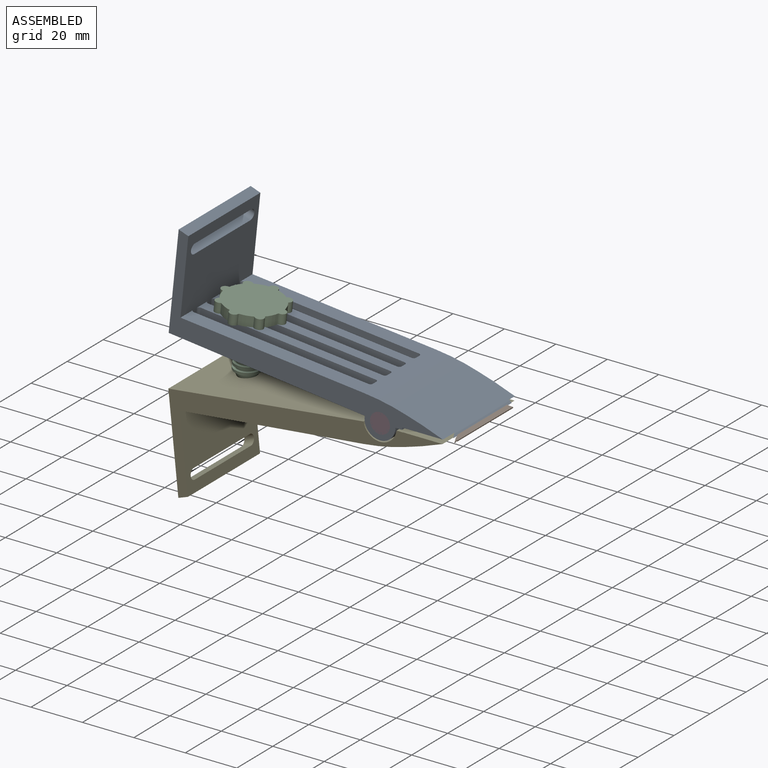
[diagram: assembled view]
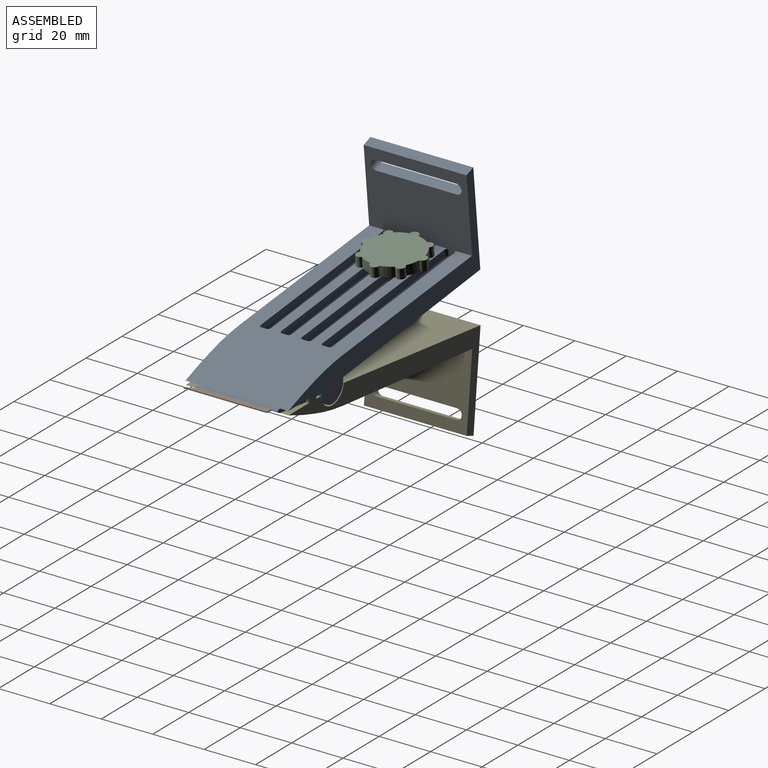
[diagram: assembled view, second angle]
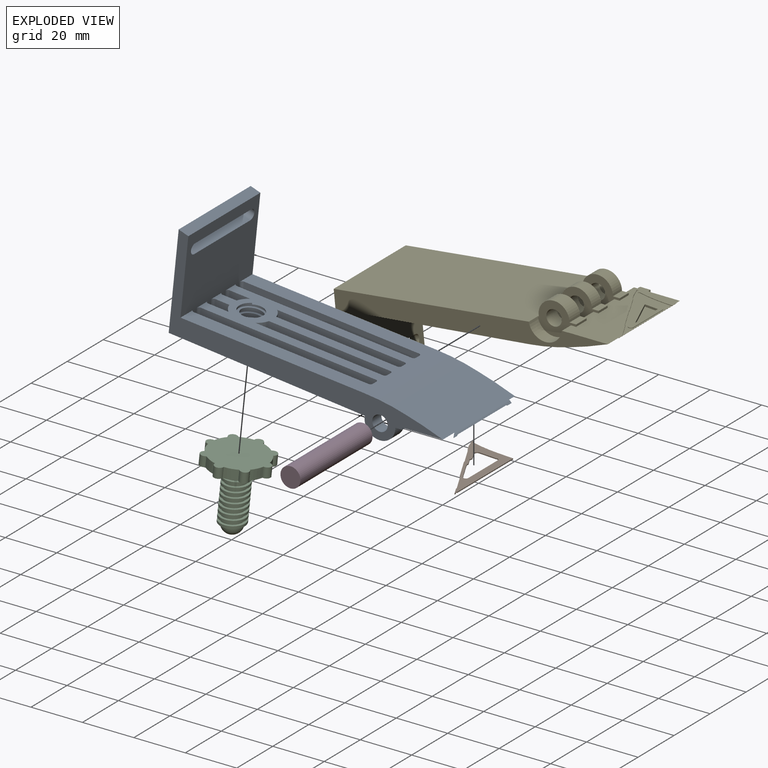
[diagram: exploded view]
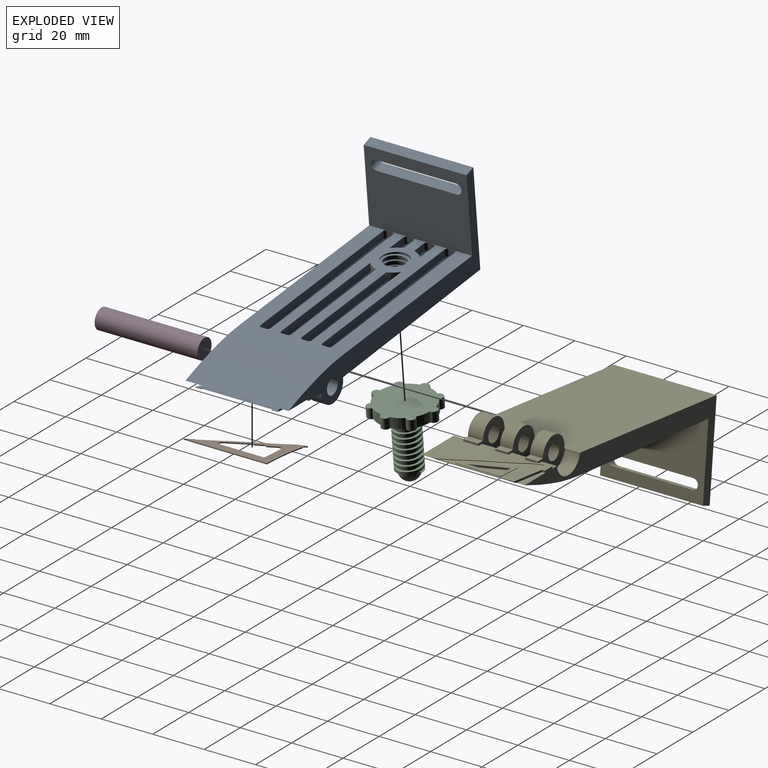
[diagram: exploded view, second angle]
ASSEMBLY  parts=5 mates=4
PART A: 163 faces, bbox 107.8x40x53.2 mm
  f0: cylinder r=4.25mm len=9.27mm, axis (-0.11,0,-0.99), area 77.1mm2, adj f2,f3,f22,f42
  f1: cylinder r=5.24mm len=11.24mm, axis (-0.11,0,-0.99), area 141.6mm2, adj f2,f3,f22,f42
  f2: bspline ~12.1x11.02mm, area 106.1mm2, adj f0,f1,f22,f42
  f3: bspline ~12.1x11.23mm, area 107.3mm2, adj f0,f1,f22,f42
  f4: cylinder r=8mm len=4mm, axis (-0.11,0,-0.99), area 16.7mm2, adj f8,f11,f13,f17,f42,f127
  f5: cylinder r=8mm len=4.04mm, axis (-0.11,0,-0.99), area 17.4mm2, adj f16,f36,f42,f86,f90,f133
  f6: cylinder r=8mm len=4.04mm, axis (-0.11,0,-0.99), area 17.4mm2, adj f9,f14,f42,f85,f89,f121
  f7: cylinder r=8mm len=4mm, axis (-0.11,0,-0.99), area 16.7mm2, adj f10,f12,f15,f40,f42,f115
  f8: plane 6.88x2mm, normal (0.11,0,0.99), area 12.5mm2, adj f4,f17,f127,f132
  f9: plane 48.47x5.58mm, normal (0.11,0,0.99), area 96.3mm2, adj f6,f14,f116,f121
  f10: plane 5.69x3.16mm, normal (0,-1,0), area 14mm2, adj f7,f42,f114,f115
  f11: plane 5.69x3.16mm, normal (0,1,0), area 14mm2, adj f4,f17,f42,f135
  f12: plane 8.13x3.44mm, normal (0,1,0), area 20.5mm2, adj f7,f15,f42,f123
  f13: plane 8.13x3.44mm, normal (0,-1,0), area 20.5mm2, adj f4,f42,f126,f127
  f14: cylinder r=1mm len=47.42mm, axis (0.99,0,-0.11), area 74.5mm2, adj f6,f9,f85,f113
  f15: cylinder r=1mm len=7.94mm, axis (-0.99,0,0.11), area 11.8mm2, adj f7,f12,f40,f122
  f16: cylinder r=1mm len=49.53mm, axis (0.99,0,-0.11), area 77.6mm2, adj f5,f36,f90,f125
  f17: cylinder r=1mm len=5.83mm, axis (-0.99,0,0.11), area 8.7mm2, adj f4,f8,f11,f134
  f18: plane 35.56x19.6mm, normal (0,0,-1), area 95mm2, adj f19,f21,f33,f43,f50,f51,f53,f54
  f19: cylinder r=6.01mm len=12.01mm, axis (0,1,0), area 100.2mm2, adj f18,f22,f33,f161
  f20: cylinder r=3mm len=6mm, axis (0,1,0), area 94.9mm2, adj f33,f161
  f21: plane 1.39x0.8mm, normal (1,0,0), area 1.1mm2, adj f18,f23,f54,f161
  f22: plane 76.23x40mm, normal (-0.11,0,-0.99), area 2987.6mm2, adj f0,f1,f2,f3,f19,f25,f29,f32
  f23: plane 36.36x15.86mm, normal (0,0,-1), area 331.7mm2, adj f21,f27,f31,f32,f45,f54,f55,f148
  f24: plane 5.02x2.6mm, normal (0,0,-1), area 13.1mm2, adj f25,f27,f151,f157
  f25: cylinder r=6.01mm len=12.01mm, axis (0,1,0), area 100mm2, adj f22,f24,f151,f157
  f26: cylinder r=3mm len=6mm, axis (0,1,0), area 94.7mm2, adj f151,f157
  f27: plane 5.02x0.8mm, normal (1,0,0), area 4mm2, adj f23,f24,f151,f157
  f28: plane 5.02x2.62mm, normal (0,0,-1), area 13.1mm2, adj f29,f31,f152,f162
  f29: cylinder r=6.01mm len=12.01mm, axis (0,1,0), area 100mm2, adj f22,f28,f152,f162
  f30: cylinder r=3mm len=6mm, axis (0,1,0), area 94.7mm2, adj f152,f162
  f31: plane 5.02x0.8mm, normal (1,0,0), area 4mm2, adj f23,f28,f152,f162
  f32: plane 106.6x53.19mm, normal (0,-1,0), area 867.8mm2, adj f22,f23,f42,f44,f45,f46,f47,f48
  f33: plane 106.6x53.19mm, normal (0,1,0), area 871.3mm2, adj f18,f19,f20,f22,f42,f45,f47,f48
  f34: plane 67.76x7.8mm, normal (0.11,0,0.99), area 136.4mm2, adj f139,f140,f144,f145
  f35: plane 3.3x2mm, normal (-0.99,0,0.11), area 6.6mm2, adj f42,f136,f140,f141
  f36: plane 48.47x5.58mm, normal (0.11,0,0.99), area 96.3mm2, adj f5,f16,f128,f133
  f37: plane 3.3x2mm, normal (-0.99,0,0.11), area 6.6mm2, adj f42,f124,f128,f129
  f38: plane 67.76x7.8mm, normal (0.11,0,0.99), area 136.4mm2, adj f103,f104,f108,f109
  f39: plane 3.3x2mm, normal (-0.99,0,0.11), area 6.6mm2, adj f42,f100,f104,f105
  f40: plane 6.88x2mm, normal (0.11,0,0.99), area 12.5mm2, adj f7,f15,f115,f120
  f41: plane 3.3x2mm, normal (-0.99,0,0.11), area 6.6mm2, adj f42,f112,f116,f117
  f42: plane 71.53x40.03mm, normal (0.1,0,0.99), area 1788.2mm2, adj f0,f1,f2,f3,f4,f5,f6,f7
  f43: plane 32.24x0.76mm, normal (0.65,0,0.76), area 23.3mm2, adj f18,f45,f50,f53,f54,f56,f57,f58
  f44: plane 5.03x2.59mm, normal (0,0,-1), area 13mm2, adj f32,f46,f55,f156
  f45: plane 40x8.38mm, normal (0.34,0,0.94), area 352.8mm2, adj f23,f32,f33,f43,f47,f50,f52,f54
  f46: cylinder r=6.01mm len=12.01mm, axis (0,1,0), area 100.2mm2, adj f22,f32,f44,f156
  f47: plane 40x6.34mm, normal (0.29,0,0.96), area 265.5mm2, adj f32,f33,f45,f48
  f48: cylinder r=85.45mm len=40mm, axis (0,1,0), area 661.8mm2, adj f32,f33,f42,f47
  f49: cylinder r=3mm len=6mm, axis (0,1,0), area 94.9mm2, adj f32,f156
  f50: plane 12.57x2.27mm, normal (0.18,0.98,0), area 9.8mm2, adj f18,f43,f45,f51,f52
  f51: plane 1.19x0.8mm, normal (1,0,0), area 1mm2, adj f18,f33,f50,f52
  f52: plane 11.42x3.25mm, normal (0,0,-1), area 25.4mm2, adj f33,f45,f50,f51
  f53: plane 0.17x0.15mm, normal (-0.45,-0.89,0), area 0mm2, adj f18,f43,f54
  f54: plane 31.83x16.81mm, normal (-0.88,-0.47,0), area 28.2mm2, adj f18,f21,f23,f43,f45,f53
  f55: plane 5.03x0.8mm, normal (1,0,0), area 4mm2, adj f23,f32,f44,f156
  f56: plane 3.83x0.31mm, normal (-0.08,-1,0), area 0.7mm2, adj f18,f43,f58,f59
  f57: plane 7.1x3.75mm, normal (0.88,0.47,0), area 1.6mm2, adj f18,f43,f58,f69
  f58: plane 30.73x15.75mm, normal (0,0,-1), area 108.8mm2, adj f43,f56,f57,f59,f60,f61,f62,f63
  f59: cylinder r=53.87mm len=10.45mm, axis (0,0,-1), area 2.1mm2, adj f18,f56,f58,f60
  f60: plane 0.55x0.29mm, normal (0.47,-0.88,0), area 0.1mm2, adj f18,f58,f59,f61
  f61: plane 1.33x0.7mm, normal (-0.88,-0.47,0), area 0.3mm2, adj f18,f58,f60,f62
  f62: plane 0.45x0.24mm, normal (0.47,-0.88,0), area 0.1mm2, adj f18,f58,f61,f63
  f63: plane 3.65x1.36mm, normal (0.94,0.35,0), area 0.8mm2, adj f18,f58,f62,f64
  f64: plane 2.1x1.11mm, normal (0.88,0.47,0), area 0.5mm2, adj f18,f58,f63,f65
  f65: plane 0.25x0.2mm, normal (0.47,0.88,0), area 0.1mm2, adj f18,f58,f64,f66
  f66: plane 8.05x4.25mm, normal (0.88,0.47,0), area 1.8mm2, adj f18,f58,f65,f67
  f67: plane 0.33x0.2mm, normal (1,0,0), area 0.1mm2, adj f18,f58,f66,f68
  f68: plane 9.49x5.01mm, normal (0.88,0.47,0), area 2.1mm2, adj f18,f58,f67,f69
  f69: plane 0.26x0.2mm, normal (0.25,0.97,0), area 0.1mm2, adj f18,f57,f58,f68
  f70: plane 3.4x1.77mm, normal (-0.89,-0.46,0), area 0.8mm2, adj f58,f71,f79,f84
  f71: cylinder r=1.06mm len=1.54mm, axis (0,0,-1), area 0.4mm2, adj f58,f70,f72,f84
  f72: plane 6.81x0.55mm, normal (0.08,1,0), area 1.4mm2, adj f58,f71,f73,f84
  f73: cylinder r=1.11mm len=1.42mm, axis (0,0,-1), area 0.4mm2, adj f58,f72,f74,f84
  f74: plane 16.2x0.2mm, normal (1,0,0), area 3.2mm2, adj f58,f73,f75,f84
  f75: cylinder r=0.98mm len=1.85mm, axis (0,0,-1), area 0.6mm2, adj f58,f74,f76,f84
  f76: plane 8.21x4.34mm, normal (-0.88,-0.47,0), area 1.9mm2, adj f58,f75,f77,f84
  f77: plane 1.27x0.2mm, normal (-1,-0.09,0), area 0.3mm2, adj f58,f76,f78,f84
  f78: plane 2.72x1.44mm, normal (-0.88,-0.47,0), area 0.6mm2, adj f58,f77,f79,f84
  f79: plane 1.08x0.26mm, normal (-0.97,0.24,0), area 0.2mm2, adj f58,f70,f78,f84
  f80: plane 13.15x5.48mm, normal (0,0,-1), area 34.4mm2, adj f81,f82,f83
  f81: plane 5.48x0.8mm, normal (-0.11,-0.99,0), area 4.4mm2, adj f80,f82,f83,f84
  f82: plane 12.57x0.8mm, normal (-1,0,0), area 10.1mm2, adj f80,f81,f83,f84
  f83: plane 13.15x5.48mm, normal (0.92,0.38,0), area 11.4mm2, adj f80,f81,f82,f84
  f84: plane 18.75x9.37mm, normal (0,0,-1), area 74.1mm2, adj f70,f71,f72,f73,f74,f75,f76,f77
  f85: plane 47.36x8.17mm, normal (0,-1,0), area 144mm2, adj f6,f14,f42,f112
  f86: plane 47.36x8.17mm, normal (0,1,0), area 144mm2, adj f5,f42,f129,f133
  f87: plane 68.13x10.34mm, normal (0,1,0), area 199.9mm2, adj f42,f105,f109,f111
  f88: plane 68.13x10.34mm, normal (0,-1,0), area 199.9mm2, adj f42,f100,f102,f103
  f89: plane 49.79x8.43mm, normal (0,1,0), area 150.8mm2, adj f6,f42,f117,f121
  f90: plane 49.79x8.43mm, normal (0,-1,0), area 150.8mm2, adj f5,f16,f42,f124
  f91: plane 68.13x10.34mm, normal (0,1,0), area 199.9mm2, adj f42,f141,f145,f147
  f92: plane 68.13x10.34mm, normal (0,-1,0), area 199.9mm2, adj f42,f136,f138,f139
  f93: plane 40x37.37mm, normal (-0.99,0,0.1), area 1365.4mm2, adj f22,f32,f33,f95,f96,f97,f98,f99
  f94: plane 40x31.98mm, normal (0.99,0,-0.1), area 1067mm2, adj f32,f33,f42,f95,f96,f97,f98,f99
  f95: plane 31.24x3.76mm, normal (-0.34,0,-0.94), area 124.9mm2, adj f93,f94,f96,f98
  f96: bspline ~5.35x4.17mm, area 24.8mm2, adj f93,f94,f95,f97
  f97: plane 31.16x3.76mm, normal (0.34,0,0.94), area 124.7mm2, adj f93,f94,f96,f98
  f98: bspline ~5.35x4.17mm, area 24.5mm2, adj f93,f94,f95,f97
  f99: plane 40x3.76mm, normal (0.34,0,0.94), area 160mm2, adj f32,f33,f93,f94
  f100: cylinder r=1mm len=3.41mm, axis (0.11,0,0.99), area 5.2mm2, adj f39,f42,f88,f101
  f101: sphere r=1mm, area 1.6mm2, adj f100,f103,f104
  f102: cylinder r=1mm len=2.64mm, axis (-0.1,0,-0.99), area 4mm2, adj f42,f88,f94,f106
  f103: cylinder r=1mm len=67.87mm, axis (0.99,0,-0.11), area 107.1mm2, adj f38,f88,f101,f106
  f104: cylinder r=1mm len=2mm, axis (0,1,0), area 3.1mm2, adj f38,f39,f101,f107
  f105: cylinder r=1mm len=3.41mm, axis (-0.11,0,-0.99), area 5.2mm2, adj f39,f42,f87,f107
  f106: sphere r=1mm, area 1.5mm2, adj f102,f103,f108
  f107: sphere r=1mm, area 1.6mm2, adj f104,f105,f109
  f108: cylinder r=1mm len=2mm, axis (0,-1,0), area 3.1mm2, adj f38,f94,f106,f110
  f109: cylinder r=1mm len=67.87mm, axis (-0.99,0,0.11), area 107.1mm2, adj f38,f87,f107,f110
  f110: sphere r=1mm, area 1.5mm2, adj f108,f109,f111
  f111: cylinder r=1mm len=2.64mm, axis (0.1,0,0.99), area 4mm2, adj f42,f87,f94,f110
  f112: cylinder r=1mm len=3.41mm, axis (0.11,0,0.99), area 5.2mm2, adj f41,f42,f85,f113
  f113: sphere r=1mm, area 1.6mm2, adj f14,f112,f116
  f114: cylinder r=1mm len=2.64mm, axis (-0.1,0,-0.99), area 4mm2, adj f10,f42,f94,f118
  f115: cylinder r=1mm len=5.83mm, axis (0.99,0,-0.11), area 8.7mm2, adj f7,f10,f40,f118
  f116: cylinder r=1mm len=2mm, axis (0,1,0), area 3.1mm2, adj f9,f41,f113,f119
  f117: cylinder r=1mm len=3.41mm, axis (-0.11,0,-0.99), area 5.2mm2, adj f41,f42,f89,f119
  f118: sphere r=1mm, area 1.5mm2, adj f114,f115,f120
  f119: sphere r=1mm, area 1.6mm2, adj f116,f117,f121
  f120: cylinder r=1mm len=2mm, axis (0,-1,0), area 3.1mm2, adj f40,f94,f118,f122
  f121: cylinder r=1mm len=49.53mm, axis (-0.99,0,0.11), area 77.6mm2, adj f6,f9,f89,f119
  f122: sphere r=1mm, area 1.5mm2, adj f15,f120,f123
  f123: cylinder r=1mm len=2.64mm, axis (0.1,0,0.99), area 4mm2, adj f12,f42,f94,f122
  f124: cylinder r=1mm len=3.41mm, axis (0.11,0,0.99), area 5.2mm2, adj f37,f42,f90,f125
  f125: sphere r=1mm, area 1.6mm2, adj f16,f124,f128
  f126: cylinder r=1mm len=2.64mm, axis (-0.1,0,-0.99), area 4mm2, adj f13,f42,f94,f130
  f127: cylinder r=1mm len=7.94mm, axis (0.99,0,-0.11), area 11.8mm2, adj f4,f8,f13,f130
  f128: cylinder r=1mm len=2mm, axis (0,1,0), area 3.1mm2, adj f36,f37,f125,f131
  f129: cylinder r=1mm len=3.41mm, axis (-0.11,0,-0.99), area 5.2mm2, adj f37,f42,f86,f131
  f130: sphere r=1mm, area 1.5mm2, adj f126,f127,f132
  f131: sphere r=1mm, area 1.6mm2, adj f128,f129,f133
  f132: cylinder r=1mm len=2mm, axis (0,-1,0), area 3.1mm2, adj f8,f94,f130,f134
  f133: cylinder r=1mm len=47.42mm, axis (-0.99,0,0.11), area 74.5mm2, adj f5,f36,f86,f131
  f134: sphere r=1mm, area 1.5mm2, adj f17,f132,f135
  f135: cylinder r=1mm len=2.64mm, axis (0.1,0,0.99), area 4mm2, adj f11,f42,f94,f134
  f136: cylinder r=1mm len=3.41mm, axis (0.11,0,0.99), area 5.2mm2, adj f35,f42,f92,f137
  f137: sphere r=1mm, area 1.6mm2, adj f136,f139,f140
  f138: cylinder r=1mm len=2.64mm, axis (-0.1,0,-0.99), area 4mm2, adj f42,f92,f94,f142
  f139: cylinder r=1mm len=67.87mm, axis (0.99,0,-0.11), area 107.1mm2, adj f34,f92,f137,f142
  f140: cylinder r=1mm len=2mm, axis (0,1,0), area 3.1mm2, adj f34,f35,f137,f143
  f141: cylinder r=1mm len=3.41mm, axis (-0.11,0,-0.99), area 5.2mm2, adj f35,f42,f91,f143
  f142: sphere r=1mm, area 1.5mm2, adj f138,f139,f144
  f143: sphere r=1mm, area 1.6mm2, adj f140,f141,f145
  f144: cylinder r=1mm len=2mm, axis (0,-1,0), area 3.1mm2, adj f34,f94,f142,f146
  f145: cylinder r=1mm len=67.87mm, axis (-0.99,0,0.11), area 107.1mm2, adj f34,f91,f143,f146
  f146: sphere r=1mm, area 1.5mm2, adj f144,f145,f147
  f147: cylinder r=1mm len=2.64mm, axis (0.1,0,0.99), area 4mm2, adj f42,f91,f94,f146
  f148: plane 6.63x0.05mm, normal (-1,0,0), area 0.3mm2, adj f23,f150,f151,f152
  f149: cylinder r=6.5mm len=12.85mm, axis (0,1,0), area 122.5mm2, adj f22,f150,f151,f152
  f150: plane 6.63x2.4mm, normal (0,0,-1), area 15.9mm2, adj f148,f149,f151,f152
  f151: plane 15.26x12.51mm, normal (0,1,0), area 96.1mm2, adj f22,f23,f24,f25,f26,f27,f148,f149
  f152: plane 15.26x12.51mm, normal (0,-1,0), area 96.1mm2, adj f22,f23,f28,f29,f30,f31,f148,f149
  f153: plane 6.63x0.05mm, normal (-1,0,0), area 0.3mm2, adj f23,f155,f156,f157
  f154: cylinder r=6.5mm len=12.85mm, axis (0,1,0), area 122.5mm2, adj f22,f155,f156,f157
  f155: plane 6.63x2.4mm, normal (0,0,-1), area 15.9mm2, adj f153,f154,f156,f157
  f156: plane 15.26x12.51mm, normal (0,1,0), area 96.1mm2, adj f22,f23,f44,f46,f49,f55,f153,f154
  f157: plane 15.26x12.51mm, normal (0,-1,0), area 96.1mm2, adj f22,f23,f24,f25,f26,f27,f153,f154
  f158: plane 6.63x0.05mm, normal (-1,0,0), area 0.3mm2, adj f23,f160,f161,f162
  f159: cylinder r=6.5mm len=12.85mm, axis (0,-1,0), area 122.5mm2, adj f22,f160,f161,f162
  f160: plane 6.63x2.4mm, normal (0,0,-1), area 15.9mm2, adj f158,f159,f161,f162
  f161: plane 15.26x12.51mm, normal (0,-1,0), area 96.1mm2, adj f18,f19,f20,f21,f22,f23,f158,f159
  f162: plane 15.26x12.51mm, normal (0,1,0), area 96.1mm2, adj f22,f23,f28,f29,f30,f31,f158,f159
PART B: 31 faces, bbox 18.3x35.8x0.4 mm
  f0: plane 0.67x0.38mm, normal (0.88,0.47,0), area 0.3mm2, adj f1,f28,f29,f30
  f1: plane 0.38x0.36mm, normal (0.47,-0.88,0), area 0.2mm2, adj f0,f2,f29,f30
  f2: plane 30.83x0.38mm, normal (1,0,0), area 11.7mm2, adj f1,f3,f29,f30
  f3: plane 6.14x0.49mm, normal (0.08,1,0), area 2.3mm2, adj f2,f4,f29,f30
  f4: cylinder r=53.87mm len=10.45mm, axis (0,0,-1), area 4mm2, adj f3,f5,f29,f30
  f5: plane 0.55x0.38mm, normal (-0.47,0.88,0), area 0.2mm2, adj f4,f6,f29,f30
  f6: plane 1.33x0.7mm, normal (0.88,0.47,0), area 0.6mm2, adj f5,f7,f29,f30
  f7: plane 0.45x0.38mm, normal (-0.47,0.88,0), area 0.2mm2, adj f6,f8,f29,f30
  f8: plane 3.65x1.36mm, normal (-0.94,-0.35,0), area 1.5mm2, adj f7,f9,f29,f30
  f9: plane 2.1x1.11mm, normal (-0.88,-0.47,0), area 0.9mm2, adj f8,f10,f29,f30
  f10: plane 0.38x0.25mm, normal (-0.47,-0.88,0), area 0.1mm2, adj f9,f11,f29,f30
  f11: plane 8.05x4.25mm, normal (-0.88,-0.47,0), area 3.5mm2, adj f10,f12,f29,f30
  f12: plane 0.38x0.33mm, normal (-1,0,0), area 0.1mm2, adj f11,f13,f29,f30
  f13: plane 9.49x5.01mm, normal (-0.88,-0.47,0), area 4.1mm2, adj f12,f14,f29,f30
  f14: plane 0.38x0.26mm, normal (-0.25,-0.97,0), area 0.1mm2, adj f13,f15,f29,f30
  f15: plane 8.15x4.3mm, normal (-0.88,-0.47,0), area 3.5mm2, adj f14,f16,f29,f30
  f16: plane 0.38x0.27mm, normal (-0.96,0.29,0), area 0.1mm2, adj f15,f17,f29,f30
  f17: plane 3.36x1.77mm, normal (-0.88,-0.47,0), area 1.4mm2, adj f16,f28,f29,f30
  f18: plane 3.4x1.77mm, normal (0.89,0.46,0), area 1.5mm2, adj f19,f27,f29,f30
  f19: cylinder r=1.06mm len=1.54mm, axis (0,0,-1), area 0.9mm2, adj f18,f20,f29,f30
  f20: plane 6.81x0.55mm, normal (-0.08,-1,0), area 2.6mm2, adj f19,f21,f29,f30
  f21: cylinder r=1.11mm len=1.42mm, axis (0,0,-1), area 0.7mm2, adj f20,f22,f29,f30
  f22: plane 16.2x0.38mm, normal (-1,0,0), area 6.2mm2, adj f21,f23,f29,f30
  f23: cylinder r=0.98mm len=1.85mm, axis (0,0,-1), area 1.1mm2, adj f22,f24,f29,f30
  f24: plane 8.21x4.34mm, normal (0.88,0.47,0), area 3.5mm2, adj f23,f25,f29,f30
  f25: plane 1.27x0.38mm, normal (1,0.09,0), area 0.5mm2, adj f24,f26,f29,f30
  f26: plane 2.72x1.44mm, normal (0.88,0.47,0), area 1.2mm2, adj f25,f27,f29,f30
  f27: plane 1.08x0.38mm, normal (0.97,-0.24,0), area 0.4mm2, adj f18,f26,f29,f30
  f28: plane 0.74x0.38mm, normal (1,0,0), area 0.3mm2, adj f0,f17,f29,f30
  f29: plane 35.85x18.3mm, normal (0,0,1), area 184.2mm2, adj f0,f1,f2,f3,f4,f5,f6,f7
  f30: plane 35.85x18.3mm, normal (0,0,-1), area 184.2mm2, adj f0,f1,f2,f3,f4,f5,f6,f7
PART C: 24 faces, bbox 25.5x25.5x29 mm
  f0: plane 10x5mm, normal (0,0,1), area 14.1mm2, adj f19,f21,f22,f23
  f1: cylinder r=11mm len=4.74mm, axis (0,0,-1), area 20.7mm2, adj f10,f11,f16,f17
  f2: cylinder r=11mm len=4.74mm, axis (0,0,-1), area 20.7mm2, adj f10,f11,f17,f18
  f3: cylinder r=11mm len=4.74mm, axis (0,0,-1), area 20.7mm2, adj f10,f11,f12,f18
  f4: cylinder r=11mm len=4.74mm, axis (0,0,-1), area 20.7mm2, adj f10,f11,f12,f13
  f5: cylinder r=11mm len=4.74mm, axis (0,0,-1), area 20.7mm2, adj f10,f11,f13,f14
  f6: cylinder r=11mm len=4.74mm, axis (0,0,-1), area 20.7mm2, adj f10,f11,f14,f15
  f7: cylinder r=11mm len=4.74mm, axis (0,0,-1), area 20.7mm2, adj f8,f10,f11,f15
  f8: cylinder r=1.73mm len=4mm, axis (0,0,-1), area 22.8mm2, adj f7,f9,f10,f11
  f9: cylinder r=11mm len=4.74mm, axis (0,0,-1), area 20.7mm2, adj f8,f10,f11,f16
  f10: plane 25.46x25.46mm, normal (0,0,1), area 354.6mm2, adj f1,f2,f3,f4,f5,f6,f7,f8
  f11: plane 25.46x25.46mm, normal (0,0,-1), area 419mm2, adj f1,f2,f3,f4,f5,f6,f7,f8
  f12: cylinder r=1.73mm len=4mm, axis (0,0,-1), area 22.8mm2, adj f3,f4,f10,f11
  f13: cylinder r=1.73mm len=4mm, axis (0,0,-1), area 22.8mm2, adj f4,f5,f10,f11
  f14: cylinder r=1.73mm len=4mm, axis (0,0,-1), area 22.8mm2, adj f5,f6,f10,f11
  f15: cylinder r=1.73mm len=4mm, axis (0,0,-1), area 22.8mm2, adj f6,f7,f10,f11
  f16: cylinder r=1.73mm len=4mm, axis (0,0,-1), area 22.8mm2, adj f1,f9,f10,f11
  f17: cylinder r=1.73mm len=4mm, axis (0,0,-1), area 22.8mm2, adj f1,f2,f10,f11
  f18: cylinder r=1.73mm len=4mm, axis (0,0,-1), area 22.8mm2, adj f2,f3,f10,f11
  f19: cylinder r=5mm len=21mm, axis (0,0,-1), area 332.4mm2, adj f0,f10,f21,f22
  f20: cylinder r=4mm len=21mm, axis (0,0,1), area 266mm2, adj f10,f21,f22,f23
  f21: bspline ~21.33x11.55mm, area 298.1mm2, adj f0,f10,f19,f20
  f22: bspline ~21.33x11.55mm, area 298.1mm2, adj f0,f10,f19,f20
  f23: sphere r=4mm, area 100.5mm2, adj f0,f20
PART D: 3 faces, bbox 7.8x40x7.8 mm
  f0: cylinder r=3.9mm len=40mm, axis (0,-1,0), area 980.2mm2, adj f1,f2
  f1: plane 7.8x7.8mm, normal (0,1,0), area 47.8mm2, adj f0
  f2: plane 7.8x7.8mm, normal (0,-1,0), area 47.8mm2, adj f0
PART E: 145 faces, bbox 107.8x40x53.2 mm
  f0: plane 76.23x40mm, normal (-0.11,0,0.99), area 3060.5mm2, adj f2,f4,f9,f13,f16,f72,f128,f130
  f1: plane 35.56x16.63mm, normal (0,0,1), area 80.5mm2, adj f2,f26,f30,f31,f33,f34,f35,f36
  f2: plane 106.6x47.18mm, normal (0,1,0), area 774.9mm2, adj f0,f1,f25,f27,f28,f29,f31,f32
  f3: plane 5.02x2.61mm, normal (0,0,1), area 13.1mm2, adj f4,f7,f130,f139
  f4: cylinder r=6.01mm len=12.01mm, axis (0,1,0), area 100mm2, adj f0,f3,f130,f139
  f5: cylinder r=3mm len=6mm, axis (0,1,0), area 94.7mm2, adj f130,f139
  f6: plane 35.71x15.85mm, normal (0,0,1), area 331.5mm2, adj f7,f11,f15,f16,f27,f34,f127,f130
  f7: plane 5.02x0.8mm, normal (1,0,0), area 4mm2, adj f3,f6,f130,f139
  f8: plane 5.83x2.6mm, normal (0,0,1), area 15.1mm2, adj f9,f11,f131,f135
  f9: cylinder r=6.01mm len=12.01mm, axis (0,1,0), area 116.1mm2, adj f0,f8,f131,f135
  f10: cylinder r=3mm len=6mm, axis (0,1,0), area 109.9mm2, adj f131,f135
  f11: plane 5.83x0.8mm, normal (1,0,0), area 4.7mm2, adj f6,f8,f131,f135
  f12: plane 5.03x2.62mm, normal (0,0,1), area 13.2mm2, adj f13,f15,f140,f144
  f13: cylinder r=6.01mm len=12.01mm, axis (0,1,0), area 100.1mm2, adj f0,f12,f140,f144
  f14: cylinder r=3mm len=6mm, axis (0,1,0), area 94.8mm2, adj f140,f144
  f15: plane 5.03x0.8mm, normal (1,0,0), area 4mm2, adj f6,f12,f140,f144
  f16: plane 106.6x46.38mm, normal (0,-1,0), area 771.7mm2, adj f0,f6,f25,f27,f28,f29,f72,f73
  f17: plane 67.76x7.8mm, normal (0.11,0,-0.99), area 136.4mm2, adj f118,f119,f123,f124
  f18: plane 3.3x2mm, normal (-0.99,0,-0.11), area 6.6mm2, adj f25,f115,f119,f120
  f19: plane 67.76x7.8mm, normal (0.11,0,-0.99), area 136.4mm2, adj f106,f107,f111,f112
  f20: plane 3.3x2mm, normal (-0.99,0,-0.11), area 6.6mm2, adj f25,f103,f107,f108
  f21: plane 67.76x7.8mm, normal (0.11,0,-0.99), area 136.4mm2, adj f82,f83,f87,f88
  f22: plane 3.3x2mm, normal (-0.99,0,-0.11), area 6.6mm2, adj f25,f79,f83,f84
  f23: plane 67.76x7.8mm, normal (0.11,0,-0.99), area 136.4mm2, adj f94,f95,f99,f100
  f24: plane 3.3x2mm, normal (-0.99,0,-0.11), area 6.6mm2, adj f25,f91,f95,f96
  f25: plane 71.51x40mm, normal (0.1,0,-0.99), area 1755.1mm2, adj f2,f16,f18,f20,f22,f24,f29,f64
  f26: plane 32.24x0.76mm, normal (0.65,0,-0.76), area 23.3mm2, adj f1,f27,f30,f33,f34,f35,f36,f37
  f27: plane 40x8.38mm, normal (0.34,0,-0.94), area 352.8mm2, adj f2,f6,f16,f26,f28,f30,f32,f34
  f28: plane 40x6.34mm, normal (0.29,0,-0.96), area 265.5mm2, adj f2,f16,f27,f29
  f29: cylinder r=85.45mm len=40mm, axis (0,1,0), area 661.8mm2, adj f2,f16,f25,f28
  f30: plane 12.57x2.27mm, normal (0.18,0.98,0), area 9.8mm2, adj f1,f26,f27,f31,f32
  f31: plane 1.19x0.8mm, normal (1,0,0), area 1mm2, adj f1,f2,f30,f32
  f32: plane 11.42x3.25mm, normal (0,0,1), area 25.4mm2, adj f2,f27,f30,f31
  f33: plane 0.17x0.15mm, normal (-0.45,-0.89,0), area 0mm2, adj f1,f26,f34
  f34: plane 31.19x16.46mm, normal (-0.88,-0.47,0), area 27.7mm2, adj f1,f6,f26,f27,f33,f142
  f35: plane 3.83x0.31mm, normal (-0.08,-1,0), area 0.7mm2, adj f1,f26,f37,f38
  f36: plane 7.1x3.75mm, normal (0.88,0.47,0), area 1.6mm2, adj f1,f26,f37,f48
  f37: plane 30.73x15.75mm, normal (0,0,1), area 108.8mm2, adj f26,f35,f36,f38,f39,f40,f41,f42
  f38: cylinder r=53.87mm len=10.45mm, axis (0,0,1), area 2.1mm2, adj f1,f35,f37,f39
  f39: plane 0.55x0.29mm, normal (0.47,-0.88,0), area 0.1mm2, adj f1,f37,f38,f40
  f40: plane 1.33x0.7mm, normal (-0.88,-0.47,0), area 0.3mm2, adj f1,f37,f39,f41
  f41: plane 0.45x0.24mm, normal (0.47,-0.88,0), area 0.1mm2, adj f1,f37,f40,f42
  f42: plane 3.65x1.36mm, normal (0.94,0.35,0), area 0.8mm2, adj f1,f37,f41,f43
  f43: plane 2.1x1.11mm, normal (0.88,0.47,0), area 0.5mm2, adj f1,f37,f42,f44
  f44: plane 0.25x0.2mm, normal (0.47,0.88,0), area 0.1mm2, adj f1,f37,f43,f45
  f45: plane 8.05x4.25mm, normal (0.88,0.47,0), area 1.8mm2, adj f1,f37,f44,f46
  f46: plane 0.33x0.2mm, normal (1,0,0), area 0.1mm2, adj f1,f37,f45,f47
  f47: plane 9.49x5.01mm, normal (0.88,0.47,0), area 2.1mm2, adj f1,f37,f46,f48
  f48: plane 0.26x0.2mm, normal (0.25,0.97,0), area 0.1mm2, adj f1,f36,f37,f47
  f49: plane 3.4x1.77mm, normal (-0.89,-0.46,0), area 0.8mm2, adj f37,f50,f58,f63
  f50: cylinder r=1.06mm len=1.54mm, axis (0,0,1), area 0.4mm2, adj f37,f49,f51,f63
  f51: plane 6.81x0.55mm, normal (0.08,1,0), area 1.4mm2, adj f37,f50,f52,f63
  f52: cylinder r=1.11mm len=1.42mm, axis (0,0,1), area 0.4mm2, adj f37,f51,f53,f63
  f53: plane 16.2x0.2mm, normal (1,0,0), area 3.2mm2, adj f37,f52,f54,f63
  f54: cylinder r=0.98mm len=1.85mm, axis (0,0,1), area 0.6mm2, adj f37,f53,f55,f63
  f55: plane 8.21x4.34mm, normal (-0.88,-0.47,0), area 1.9mm2, adj f37,f54,f56,f63
  f56: plane 1.27x0.2mm, normal (-1,-0.09,0), area 0.3mm2, adj f37,f55,f57,f63
  f57: plane 2.72x1.44mm, normal (-0.88,-0.47,0), area 0.6mm2, adj f37,f56,f58,f63
  f58: plane 1.08x0.26mm, normal (-0.97,0.24,0), area 0.2mm2, adj f37,f49,f57,f63
  f59: plane 13.15x5.48mm, normal (0,0,1), area 34.4mm2, adj f60,f61,f62
  f60: plane 5.48x0.8mm, normal (-0.11,-0.99,0), area 4.4mm2, adj f59,f61,f62,f63
  f61: plane 12.57x0.8mm, normal (-1,0,0), area 10.1mm2, adj f59,f60,f62,f63
  f62: plane 13.15x5.48mm, normal (0.92,0.38,0), area 11.4mm2, adj f59,f60,f61,f63
  f63: plane 18.75x9.37mm, normal (0,0,1), area 74.1mm2, adj f49,f50,f51,f52,f53,f54,f55,f56
  f64: plane 68.13x10.34mm, normal (0,-1,0), area 199.9mm2, adj f25,f91,f93,f94
  f65: plane 68.13x10.34mm, normal (0,1,0), area 199.9mm2, adj f25,f108,f112,f114
  f66: plane 68.13x10.34mm, normal (0,1,0), area 199.9mm2, adj f25,f84,f88,f90
  f67: plane 68.13x10.34mm, normal (0,-1,0), area 199.9mm2, adj f25,f79,f81,f82
  f68: plane 68.13x10.34mm, normal (0,1,0), area 199.9mm2, adj f25,f96,f100,f102
  f69: plane 68.13x10.34mm, normal (0,-1,0), area 199.9mm2, adj f25,f103,f105,f106
  f70: plane 68.13x10.34mm, normal (0,1,0), area 199.9mm2, adj f25,f120,f124,f126
  f71: plane 68.13x10.34mm, normal (0,-1,0), area 199.9mm2, adj f25,f115,f117,f118
  f72: plane 40x37.37mm, normal (-0.99,0,-0.1), area 1365.4mm2, adj f0,f2,f16,f74,f75,f76,f77,f78
  f73: plane 40x31.98mm, normal (0.99,0,0.1), area 1067mm2, adj f2,f16,f25,f74,f75,f76,f77,f78
  f74: plane 31.24x3.76mm, normal (-0.34,0,0.94), area 124.9mm2, adj f72,f73,f75,f77
  f75: bspline ~5.35x4.17mm, area 24.8mm2, adj f72,f73,f74,f76
  f76: plane 31.16x3.76mm, normal (0.34,0,-0.94), area 124.7mm2, adj f72,f73,f75,f77
  f77: bspline ~5.35x4.17mm, area 24.5mm2, adj f72,f73,f74,f76
  f78: plane 40x3.76mm, normal (0.34,0,-0.94), area 160mm2, adj f2,f16,f72,f73
  f79: cylinder r=1mm len=3.41mm, axis (0.11,0,-0.99), area 5.2mm2, adj f22,f25,f67,f80
  f80: sphere r=1mm, area 1.6mm2, adj f79,f82,f83
  f81: cylinder r=1mm len=2.64mm, axis (-0.1,0,0.99), area 4mm2, adj f25,f67,f73,f85
  f82: cylinder r=1mm len=67.87mm, axis (0.99,0,0.11), area 107.1mm2, adj f21,f67,f80,f85
  f83: cylinder r=1mm len=2mm, axis (0,1,0), area 3.1mm2, adj f21,f22,f80,f86
  f84: cylinder r=1mm len=3.41mm, axis (-0.11,0,0.99), area 5.2mm2, adj f22,f25,f66,f86
  f85: sphere r=1mm, area 1.6mm2, adj f81,f82,f87
  f86: sphere r=1mm, area 1.6mm2, adj f83,f84,f88
  f87: cylinder r=1mm len=2mm, axis (0,-1,0), area 3.1mm2, adj f21,f73,f85,f89
  f88: cylinder r=1mm len=67.87mm, axis (-0.99,0,-0.11), area 107.1mm2, adj f21,f66,f86,f89
  f89: sphere r=1mm, area 1.6mm2, adj f87,f88,f90
  f90: cylinder r=1mm len=2.64mm, axis (0.1,0,-0.99), area 4mm2, adj f25,f66,f73,f89
  f91: cylinder r=1mm len=3.41mm, axis (0.11,0,-0.99), area 5.2mm2, adj f24,f25,f64,f92
  f92: sphere r=1mm, area 1.6mm2, adj f91,f94,f95
  f93: cylinder r=1mm len=2.64mm, axis (-0.1,0,0.99), area 4mm2, adj f25,f64,f73,f97
  f94: cylinder r=1mm len=67.87mm, axis (0.99,0,0.11), area 107.1mm2, adj f23,f64,f92,f97
  f95: cylinder r=1mm len=2mm, axis (0,1,0), area 3.1mm2, adj f23,f24,f92,f98
  f96: cylinder r=1mm len=3.41mm, axis (-0.11,0,0.99), area 5.2mm2, adj f24,f25,f68,f98
  f97: sphere r=1mm, area 1.6mm2, adj f93,f94,f99
  f98: sphere r=1mm, area 1.6mm2, adj f95,f96,f100
  f99: cylinder r=1mm len=2mm, axis (0,-1,0), area 3.1mm2, adj f23,f73,f97,f101
  f100: cylinder r=1mm len=67.87mm, axis (-0.99,0,-0.11), area 107.1mm2, adj f23,f68,f98,f101
  f101: sphere r=1mm, area 1.6mm2, adj f99,f100,f102
  f102: cylinder r=1mm len=2.64mm, axis (0.1,0,-0.99), area 4mm2, adj f25,f68,f73,f101
  f103: cylinder r=1mm len=3.41mm, axis (0.11,0,-0.99), area 5.2mm2, adj f20,f25,f69,f104
  f104: sphere r=1mm, area 1.6mm2, adj f103,f106,f107
  f105: cylinder r=1mm len=2.64mm, axis (-0.1,0,0.99), area 4mm2, adj f25,f69,f73,f109
  f106: cylinder r=1mm len=67.87mm, axis (0.99,0,0.11), area 107.1mm2, adj f19,f69,f104,f109
  f107: cylinder r=1mm len=2mm, axis (0,1,0), area 3.1mm2, adj f19,f20,f104,f110
  f108: cylinder r=1mm len=3.41mm, axis (-0.11,0,0.99), area 5.2mm2, adj f20,f25,f65,f110
  f109: sphere r=1mm, area 1.6mm2, adj f105,f106,f111
  f110: sphere r=1mm, area 1.6mm2, adj f107,f108,f112
  f111: cylinder r=1mm len=2mm, axis (0,-1,0), area 3.1mm2, adj f19,f73,f109,f113
  f112: cylinder r=1mm len=67.87mm, axis (-0.99,0,-0.11), area 107.1mm2, adj f19,f65,f110,f113
  f113: sphere r=1mm, area 1.6mm2, adj f111,f112,f114
  f114: cylinder r=1mm len=2.64mm, axis (0.1,0,-0.99), area 4mm2, adj f25,f65,f73,f113
  f115: cylinder r=1mm len=3.41mm, axis (0.11,0,-0.99), area 5.2mm2, adj f18,f25,f71,f116
  f116: sphere r=1mm, area 1.6mm2, adj f115,f118,f119
  f117: cylinder r=1mm len=2.64mm, axis (-0.1,0,0.99), area 4mm2, adj f25,f71,f73,f121
  f118: cylinder r=1mm len=67.87mm, axis (0.99,0,0.11), area 107.1mm2, adj f17,f71,f116,f121
  f119: cylinder r=1mm len=2mm, axis (0,1,0), area 3.1mm2, adj f17,f18,f116,f122
  f120: cylinder r=1mm len=3.41mm, axis (-0.11,0,0.99), area 5.2mm2, adj f18,f25,f70,f122
  f121: sphere r=1mm, area 1.6mm2, adj f117,f118,f123
  f122: sphere r=1mm, area 1.6mm2, adj f119,f120,f124
  f123: cylinder r=1mm len=2mm, axis (0,-1,0), area 3.1mm2, adj f17,f73,f121,f125
  f124: cylinder r=1mm len=67.87mm, axis (-0.99,0,-0.11), area 107.1mm2, adj f17,f70,f122,f125
  f125: sphere r=1mm, area 1.6mm2, adj f123,f124,f126
  f126: cylinder r=1mm len=2.64mm, axis (0.1,0,-0.99), area 4mm2, adj f25,f70,f73,f125
  f127: plane 6.63x0.05mm, normal (-1,0,0), area 0.3mm2, adj f6,f129,f130,f131
  f128: cylinder r=6.5mm len=12.85mm, axis (0,-1,0), area 122.5mm2, adj f0,f129,f130,f131
  f129: plane 6.63x2.4mm, normal (0,0,1), area 15.9mm2, adj f127,f128,f130,f131
  f130: plane 15.26x12.51mm, normal (0,-1,0), area 96.1mm2, adj f0,f3,f4,f5,f6,f7,f127,f128
  f131: plane 15.26x12.51mm, normal (0,1,0), area 96.1mm2, adj f0,f6,f8,f9,f10,f11,f127,f128
  f132: plane 5.03x0.05mm, normal (-1,0,0), area 0.2mm2, adj f6,f16,f134,f135
  f133: cylinder r=6.5mm len=12.85mm, axis (0,-1,0), area 93mm2, adj f0,f16,f134,f135
  f134: plane 5.03x2.4mm, normal (0,0,1), area 12.1mm2, adj f16,f132,f133,f135
  f135: plane 15.26x12.51mm, normal (0,-1,0), area 96.1mm2, adj f0,f6,f8,f9,f10,f11,f132,f133
  f136: plane 6.63x0.05mm, normal (-1,0,0), area 0.3mm2, adj f6,f137,f139,f140
  f137: plane 6.63x2.4mm, normal (0,0,1), area 15.9mm2, adj f136,f138,f139,f140
  f138: cylinder r=6.5mm len=12.85mm, axis (0,1,0), area 122.5mm2, adj f0,f137,f139,f140
  f139: plane 15.26x12.51mm, normal (0,1,0), area 96.1mm2, adj f0,f3,f4,f5,f6,f7,f136,f137
  f140: plane 15.26x12.51mm, normal (0,-1,0), area 96.1mm2, adj f0,f6,f12,f13,f14,f15,f136,f137
  f141: plane 5.83x2.4mm, normal (0,0,1), area 14mm2, adj f2,f142,f143,f144
  f142: plane 5.83x0.85mm, normal (-1,0,0), area 3.7mm2, adj f1,f2,f6,f34,f141,f144
  f143: cylinder r=6.5mm len=12.85mm, axis (0,-1,0), area 107.8mm2, adj f0,f2,f141,f144
  f144: plane 15.26x12.51mm, normal (0,1,0), area 96.1mm2, adj f0,f6,f12,f13,f14,f15,f141,f142
PLACE A t=(-0.48,0,-17.09)mm fixed
PLACE B t=(-0.48,0,-17.08)mm
PLACE C rot(axis=(0.71,-0.71,-0.04),175.8deg) t=(-91.29,42.93,1.68)mm
PLACE D t=(-49.55,0,-17.09)mm
PLACE E rot(axis=(0,-1,0.01),0deg) t=(-0.61,0,2.91)mm
MATE cylindrical A.f42 <-> C.f1  axis (0.1,0,0.99) through (-91.78,0,-2.18)mm
MATE fastened B.f29 <-> A.f58  axis (0,0,1) through (-18.26,17.46,-16.89)mm
MATE revolute A.f20 <-> E.f128  axis (0,-1,0) through (-28.33,-20,-17.09)mm
MATE revolute D.f0 <-> A.f19  axis (0,-1,0) through (-28.33,-20,-17.09)mm
